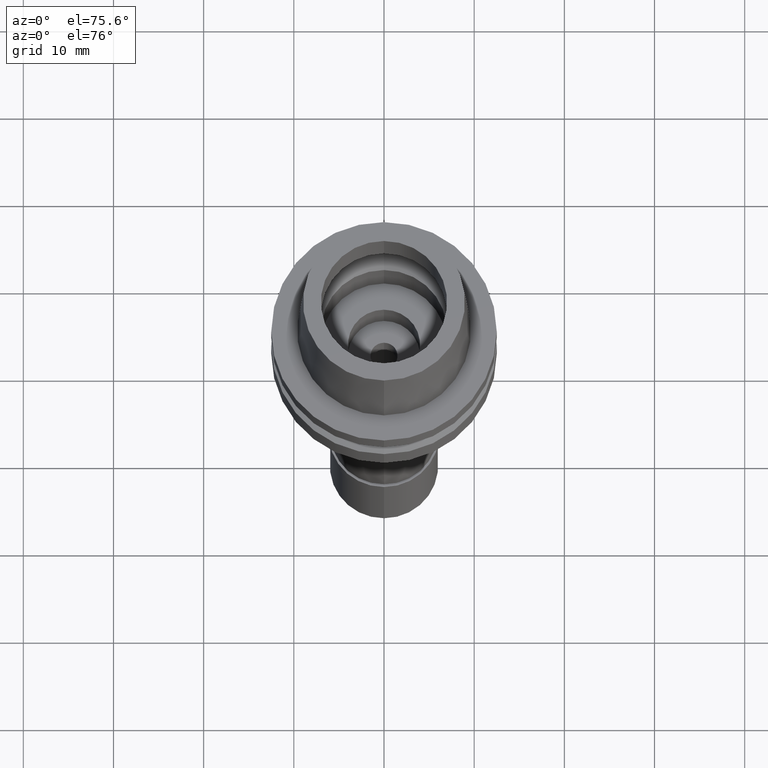
[diagram: clean part render]
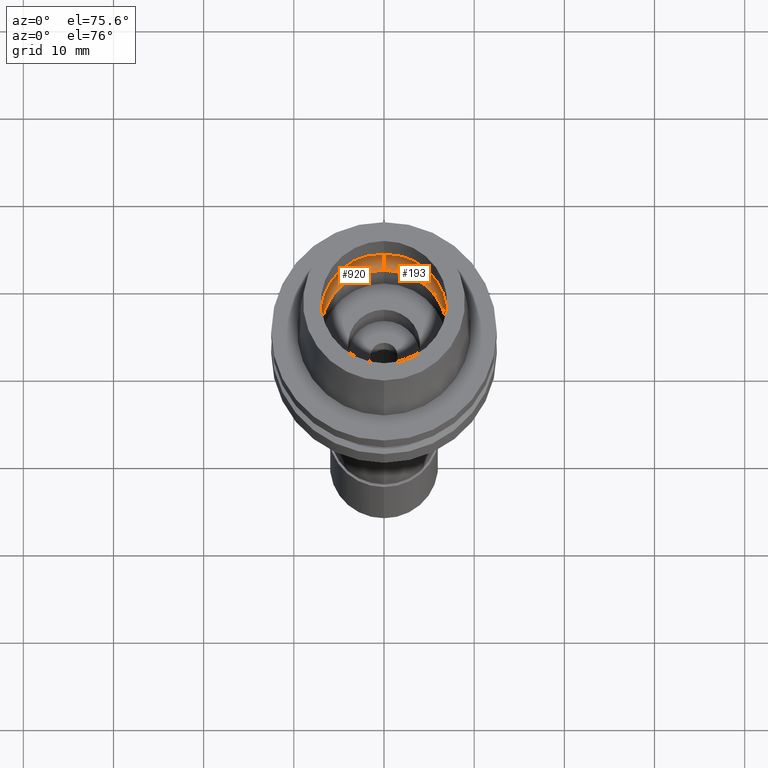
[diagram: same view with one multi-face feature highlighted, each face labeled with its STEP entity id]
A machine part, auxiliary view. The highlighted faces form ONE feature: a constant-radius fillet chain: 2 tangent blend faces with common blend radius 3 mm. The faces share edges in the B-rep.
Their STEP definitions:
[1] entity #920 (Torus):
#48 = AXIS2_PLACEMENT_3D ( 'NONE', #960, #1792, #935 ) ;
#336 = CARTESIAN_POINT ( 'NONE',  ( 0.0000000000000000000, -7.000000000000000000, 0.05000000000000000278 ) ) ;
#411 = CIRCLE ( 'NONE', #48, 3.000000000000000000 ) ;
#457 = CARTESIAN_POINT ( 'NONE',  ( 0.0000000000000000000, 0.0000000000000000000, 0.05000000000000000278 ) ) ;
#462 = CIRCLE ( 'NONE', #1543, 7.000000000000000000 ) ;
#515 = VERTEX_POINT ( 'NONE', #999 ) ;
#692 = EDGE_CURVE ( 'NONE', #1176, #1263, #411, .T. ) ;
#780 = CARTESIAN_POINT ( 'NONE',  ( 0.0000000000000000000, 0.0000000000000000000, 2.449999999999999734 ) ) ;
#798 = CARTESIAN_POINT ( 'NONE',  ( 0.0000000000000000000, -8.200000000000001066, 2.449999999999999734 ) ) ;
#907 = DIRECTION ( 'NONE',  ( 1.000000000000000000, 0.0000000000000000000, 0.0000000000000000000 ) ) ;
#920 = ADVANCED_FACE ( 'NONE', ( #2088 ), #2236, .F. ) ;
#935 = DIRECTION ( 'NONE',  ( 0.0000000000000000000, -0.5999999999999998668, -0.8000000000000001554 ) ) ;
#960 = CARTESIAN_POINT ( 'NONE',  ( 0.0000000000000000000, -5.200000000000000178, 2.449999999999999734 ) ) ;
#999 = CARTESIAN_POINT ( 'NONE',  ( 0.0000000000000000000, 8.200000000000001066, 2.449999999999999734 ) ) ;
#1095 = CARTESIAN_POINT ( 'NONE',  ( 0.0000000000000000000, 0.0000000000000000000, 2.449999999999999734 ) ) ;
#1116 = AXIS2_PLACEMENT_3D ( 'NONE', #1306, #907, #1497 ) ;
#1151 = AXIS2_PLACEMENT_3D ( 'NONE', #1095, #1476, #1896 ) ;
#1162 = CIRCLE ( 'NONE', #1116, 3.000000000000000000 ) ;
#1176 = VERTEX_POINT ( 'NONE', #336 ) ;
#1254 = EDGE_LOOP ( 'NONE', ( #2533, #2564, #1867, #2188 ) ) ;
#1263 = VERTEX_POINT ( 'NONE', #798 ) ;
#1279 = DIRECTION ( 'NONE',  ( 0.0000000000000000000, 0.0000000000000000000, 1.000000000000000000 ) ) ;
#1306 = CARTESIAN_POINT ( 'NONE',  ( 0.0000000000000000000, 5.200000000000000178, 2.449999999999999734 ) ) ;
#1445 = EDGE_CURVE ( 'NONE', #1711, #1176, #462, .T. ) ;
#1476 = DIRECTION ( 'NONE',  ( 0.0000000000000000000, 0.0000000000000000000, 1.000000000000000000 ) ) ;
#1497 = DIRECTION ( 'NONE',  ( 0.0000000000000000000, 0.5999999999999998668, -0.8000000000000001554 ) ) ;
#1511 = CARTESIAN_POINT ( 'NONE',  ( 0.0000000000000000000, 7.000000000000000000, 0.05000000000000000278 ) ) ;
#1543 = AXIS2_PLACEMENT_3D ( 'NONE', #457, #1279, #2293 ) ;
#1657 = AXIS2_PLACEMENT_3D ( 'NONE', #780, #2237, #2642 ) ;
#1711 = VERTEX_POINT ( 'NONE', #1511 ) ;
#1784 = EDGE_CURVE ( 'NONE', #1711, #515, #1162, .T. ) ;
#1792 = DIRECTION ( 'NONE',  ( -1.000000000000000000, 0.0000000000000000000, 0.0000000000000000000 ) ) ;
#1867 = ORIENTED_EDGE ( 'NONE', *, *, #1445, .F. ) ;
#1896 = DIRECTION ( 'NONE',  ( 0.0000000000000000000, 1.000000000000000000, 0.0000000000000000000 ) ) ;
#2088 = FACE_OUTER_BOUND ( 'NONE', #1254, .T. ) ;
#2188 = ORIENTED_EDGE ( 'NONE', *, *, #1784, .T. ) ;
#2236 = TOROIDAL_SURFACE ( 'NONE', #1151, 5.200000000000000178, 3.000000000000000000 ) ;
#2237 = DIRECTION ( 'NONE',  ( 0.0000000000000000000, 0.0000000000000000000, -1.000000000000000000 ) ) ;
#2293 = DIRECTION ( 'NONE',  ( 0.0000000000000000000, 1.000000000000000000, 0.0000000000000000000 ) ) ;
#2357 = EDGE_CURVE ( 'NONE', #1263, #515, #2664, .T. ) ;
#2533 = ORIENTED_EDGE ( 'NONE', *, *, #2357, .F. ) ;
#2564 = ORIENTED_EDGE ( 'NONE', *, *, #692, .F. ) ;
#2642 = DIRECTION ( 'NONE',  ( 0.0000000000000000000, -1.000000000000000000, 0.0000000000000000000 ) ) ;
#2664 = CIRCLE ( 'NONE', #1657, 8.200000000000001066 ) ;
[2] entity #193 (Torus):
#9 = DIRECTION ( 'NONE',  ( 0.0000000000000000000, 0.0000000000000000000, 1.000000000000000000 ) ) ;
#48 = AXIS2_PLACEMENT_3D ( 'NONE', #960, #1792, #935 ) ;
#193 = ADVANCED_FACE ( 'NONE', ( #1282 ), #749, .F. ) ;
#258 = DIRECTION ( 'NONE',  ( 0.0000000000000000000, 1.000000000000000000, 0.0000000000000000000 ) ) ;
#336 = CARTESIAN_POINT ( 'NONE',  ( 0.0000000000000000000, -7.000000000000000000, 0.05000000000000000278 ) ) ;
#411 = CIRCLE ( 'NONE', #48, 3.000000000000000000 ) ;
#479 = ORIENTED_EDGE ( 'NONE', *, *, #692, .T. ) ;
#488 = CARTESIAN_POINT ( 'NONE',  ( 0.0000000000000000000, 0.0000000000000000000, 2.449999999999999734 ) ) ;
#515 = VERTEX_POINT ( 'NONE', #999 ) ;
#692 = EDGE_CURVE ( 'NONE', #1176, #1263, #411, .T. ) ;
#707 = DIRECTION ( 'NONE',  ( 0.0000000000000000000, 0.0000000000000000000, 1.000000000000000000 ) ) ;
#749 = TOROIDAL_SURFACE ( 'NONE', #2233, 5.200000000000000178, 3.000000000000000000 ) ;
#798 = CARTESIAN_POINT ( 'NONE',  ( 0.0000000000000000000, -8.200000000000001066, 2.449999999999999734 ) ) ;
#907 = DIRECTION ( 'NONE',  ( 1.000000000000000000, 0.0000000000000000000, 0.0000000000000000000 ) ) ;
#935 = DIRECTION ( 'NONE',  ( 0.0000000000000000000, -0.5999999999999998668, -0.8000000000000001554 ) ) ;
#960 = CARTESIAN_POINT ( 'NONE',  ( 0.0000000000000000000, -5.200000000000000178, 2.449999999999999734 ) ) ;
#999 = CARTESIAN_POINT ( 'NONE',  ( 0.0000000000000000000, 8.200000000000001066, 2.449999999999999734 ) ) ;
#1116 = AXIS2_PLACEMENT_3D ( 'NONE', #1306, #907, #1497 ) ;
#1141 = AXIS2_PLACEMENT_3D ( 'NONE', #2563, #707, #1536 ) ;
#1162 = CIRCLE ( 'NONE', #1116, 3.000000000000000000 ) ;
#1176 = VERTEX_POINT ( 'NONE', #336 ) ;
#1263 = VERTEX_POINT ( 'NONE', #798 ) ;
#1282 = FACE_OUTER_BOUND ( 'NONE', #2465, .T. ) ;
#1306 = CARTESIAN_POINT ( 'NONE',  ( 0.0000000000000000000, 5.200000000000000178, 2.449999999999999734 ) ) ;
#1329 = EDGE_CURVE ( 'NONE', #515, #1263, #1714, .T. ) ;
#1493 = ORIENTED_EDGE ( 'NONE', *, *, #2234, .F. ) ;
#1497 = DIRECTION ( 'NONE',  ( 0.0000000000000000000, 0.5999999999999998668, -0.8000000000000001554 ) ) ;
#1511 = CARTESIAN_POINT ( 'NONE',  ( 0.0000000000000000000, 7.000000000000000000, 0.05000000000000000278 ) ) ;
#1536 = DIRECTION ( 'NONE',  ( 0.0000000000000000000, -1.000000000000000000, 0.0000000000000000000 ) ) ;
#1602 = ORIENTED_EDGE ( 'NONE', *, *, #1329, .F. ) ;
#1711 = VERTEX_POINT ( 'NONE', #1511 ) ;
#1714 = CIRCLE ( 'NONE', #1930, 8.200000000000001066 ) ;
#1784 = EDGE_CURVE ( 'NONE', #1711, #515, #1162, .T. ) ;
#1792 = DIRECTION ( 'NONE',  ( -1.000000000000000000, 0.0000000000000000000, 0.0000000000000000000 ) ) ;
#1841 = CARTESIAN_POINT ( 'NONE',  ( 0.0000000000000000000, 0.0000000000000000000, 2.449999999999999734 ) ) ;
#1868 = CIRCLE ( 'NONE', #1141, 7.000000000000000000 ) ;
#1930 = AXIS2_PLACEMENT_3D ( 'NONE', #1841, #2676, #2036 ) ;
#2036 = DIRECTION ( 'NONE',  ( 0.0000000000000000000, 1.000000000000000000, 0.0000000000000000000 ) ) ;
#2233 = AXIS2_PLACEMENT_3D ( 'NONE', #488, #9, #258 ) ;
#2234 = EDGE_CURVE ( 'NONE', #1176, #1711, #1868, .T. ) ;
#2299 = ORIENTED_EDGE ( 'NONE', *, *, #1784, .F. ) ;
#2465 = EDGE_LOOP ( 'NONE', ( #1493, #479, #1602, #2299 ) ) ;
#2563 = CARTESIAN_POINT ( 'NONE',  ( 0.0000000000000000000, 0.0000000000000000000, 0.05000000000000000278 ) ) ;
#2676 = DIRECTION ( 'NONE',  ( 0.0000000000000000000, 0.0000000000000000000, -1.000000000000000000 ) ) ;